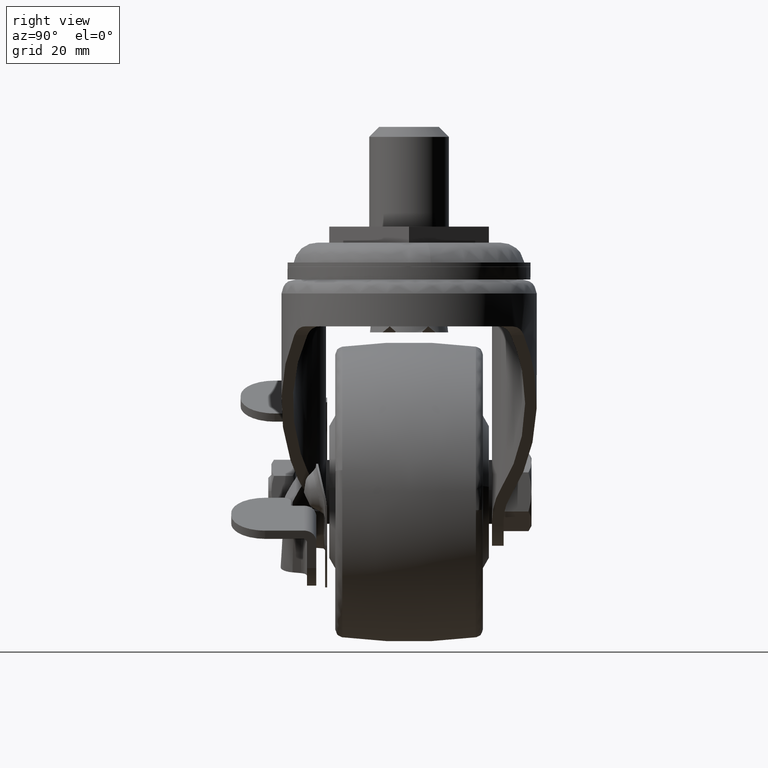
[diagram: clean part render]
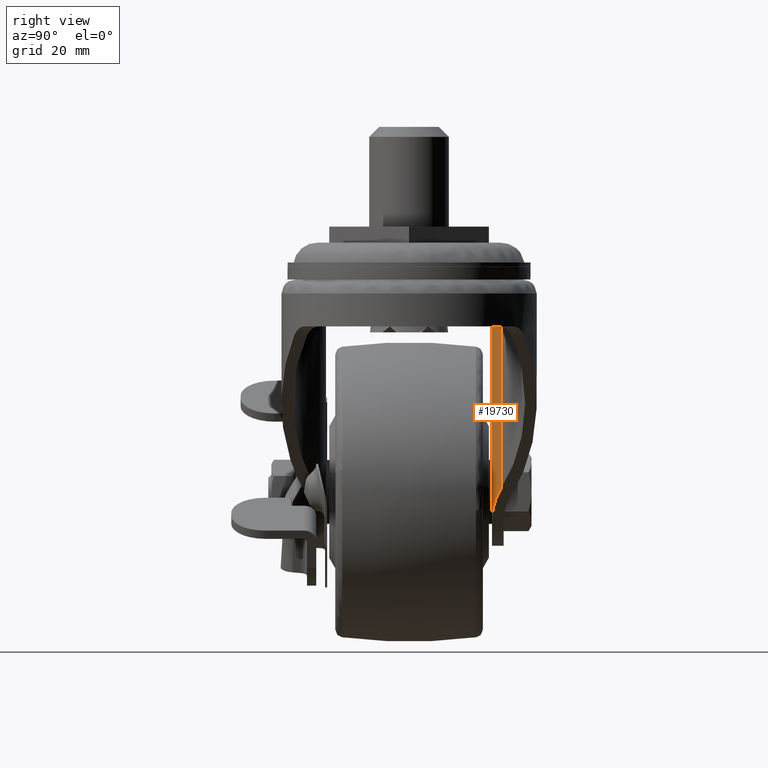
[diagram: same view with one face highlighted and labeled with its STEP entity id]
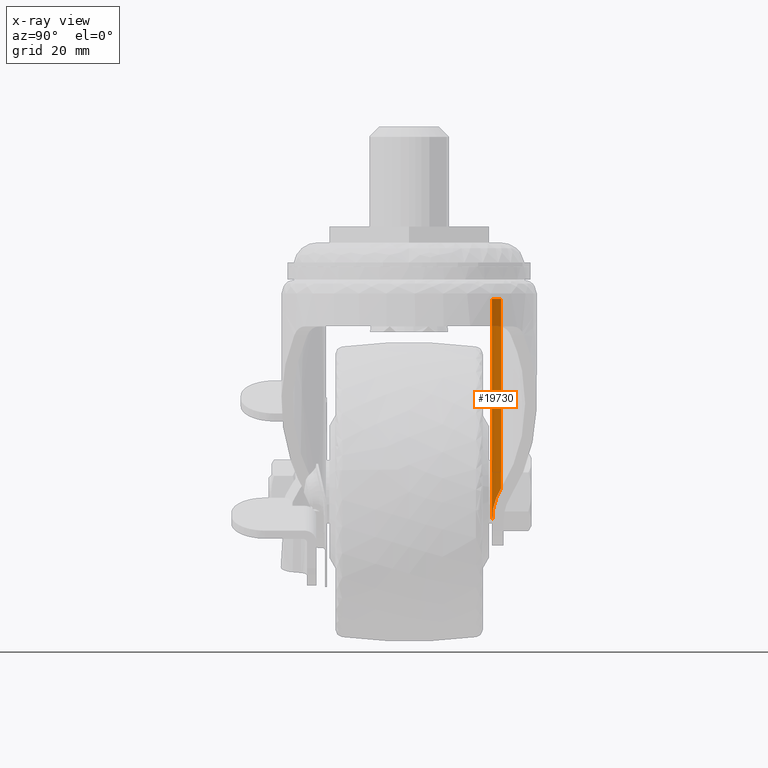
[diagram: x-ray of the same camera — body ghosted, the highlighted face saturated]
A machine part, right view. The second image highlights one B-rep face of the part: STEP entity #19730.
The next image is the same camera in x-ray: the body ghosted, the highlighted face saturated — about 14% of this face is hidden behind the body in this view.
In plain terms, the highlighted face is a freeform B-spline surface patch.
Its self-contained STEP definition (entity closure, byte-faithful):
#17805=CARTESIAN_POINT('',(-24.394876511267650,20.800000000000001,-14.150000000000000));
#17806=VERTEX_POINT('',#17805);
#18209=CARTESIAN_POINT('',(-17.747272661947250,23.061750000000000,-61.614574311255502));
#18210=VERTEX_POINT('',#18209);
#18224=CARTESIAN_POINT('',(-24.394876511267650,20.800000000000001,-69.650723608721606));
#18225=VERTEX_POINT('',#18224);
#18226=CARTESIAN_POINT('',(-24.394876511267650,20.800000000000001,-69.650723608721606));
#18227=CARTESIAN_POINT('',(-20.686310904952194,20.800000000000001,-65.167516190330446));
#18228=CARTESIAN_POINT('',(-17.747272661947200,23.061750000000000,-61.614574311255453));
#18236=(BOUNDED_CURVE()B_SPLINE_CURVE(2,(#18226,#18227,#18228),.UNSPECIFIED.,.F.,.U.)CURVE()GEOMETRIC_REPRESENTATION_ITEM()QUASI_UNIFORM_CURVE()RATIONAL_B_SPLINE_CURVE((1.0,0.946704811438075,1.0))REPRESENTATION_ITEM(''));
#18237=EDGE_CURVE('',#18225,#18210,#18236,.T.);
#18509=CARTESIAN_POINT('',(-24.394876511267650,20.800000000000001,-14.150000000000000));
#18510=CARTESIAN_POINT('',(-24.394876511267650,20.800000000000001,-69.650723608721606));
#18511=QUASI_UNIFORM_CURVE('',1,(#18509,#18510),.UNSPECIFIED.,.F.,.U.);
#18512=EDGE_CURVE('',#17806,#18225,#18511,.T.);
#19182=CARTESIAN_POINT('',(-17.747272661947250,23.061750000000000,-14.150000000000000));
#19183=VERTEX_POINT('',#19182);
#19381=CARTESIAN_POINT('',(-17.747272661947239,23.061749999999979,-14.150000000000000));
#19382=CARTESIAN_POINT('',(-20.686310904952222,20.799999999999994,-14.149999999999997));
#19383=CARTESIAN_POINT('',(-24.394876511267650,20.800000000000001,-14.150000000000000));
#19391=(BOUNDED_CURVE()B_SPLINE_CURVE(2,(#19381,#19382,#19383),.UNSPECIFIED.,.F.,.U.)CURVE()GEOMETRIC_REPRESENTATION_ITEM()QUASI_UNIFORM_CURVE()RATIONAL_B_SPLINE_CURVE((1.0,0.946704811438075,1.0))REPRESENTATION_ITEM(''));
#19392=EDGE_CURVE('',#19183,#17806,#19391,.T.);
#19706=CARTESIAN_POINT('',(-17.474594493014902,23.278616693924477,-71.038241698939643));
#19707=CARTESIAN_POINT('',(-17.474594493014902,23.278616693924477,-12.727793957526508));
#19708=CARTESIAN_POINT('',(-20.644807669263162,20.673490144015357,-71.038241698939629));
#19709=CARTESIAN_POINT('',(-20.644807669263162,20.673490144015357,-12.727793957526510));
#19710=CARTESIAN_POINT('',(-24.745962165681963,20.805655647848081,-71.038241698939643));
#19711=CARTESIAN_POINT('',(-24.745962165681963,20.805655647848081,-12.727793957526512));
#19719=(BOUNDED_SURFACE()B_SPLINE_SURFACE(1,2,((#19706,#19708,#19710),(#19707,#19709,#19711)),.UNSPECIFIED.,.F.,.F.,.U.)B_SPLINE_SURFACE_WITH_KNOTS((2,2),(3,3),(0.0,58.310447741413142),(0.0,7.934728701293627),.UNSPECIFIED.)GEOMETRIC_REPRESENTATION_ITEM()RATIONAL_B_SPLINE_SURFACE(((0.999701087225364,0.931798087211601,0.991586161104818),(0.999701087225364,0.931798087211601,0.991586161104818)))REPRESENTATION_ITEM('')SURFACE());
#19720=CARTESIAN_POINT('',(-17.747272661947250,23.061750000000000,-61.614574311255502));
#19721=CARTESIAN_POINT('',(-17.747272661947250,23.061750000000000,-14.150000000000000));
#19722=QUASI_UNIFORM_CURVE('',1,(#19720,#19721),.UNSPECIFIED.,.F.,.U.);
#19723=EDGE_CURVE('',#18210,#19183,#19722,.T.);
#19724=ORIENTED_EDGE('',*,*,#19723,.T.);
#19725=ORIENTED_EDGE('',*,*,#19392,.T.);
#19726=ORIENTED_EDGE('',*,*,#18512,.T.);
#19727=ORIENTED_EDGE('',*,*,#18237,.T.);
#19728=EDGE_LOOP('',(#19724,#19725,#19726,#19727));
#19729=FACE_OUTER_BOUND('',#19728,.T.);
#19730=ADVANCED_FACE('',(#19729),#19719,.T.);